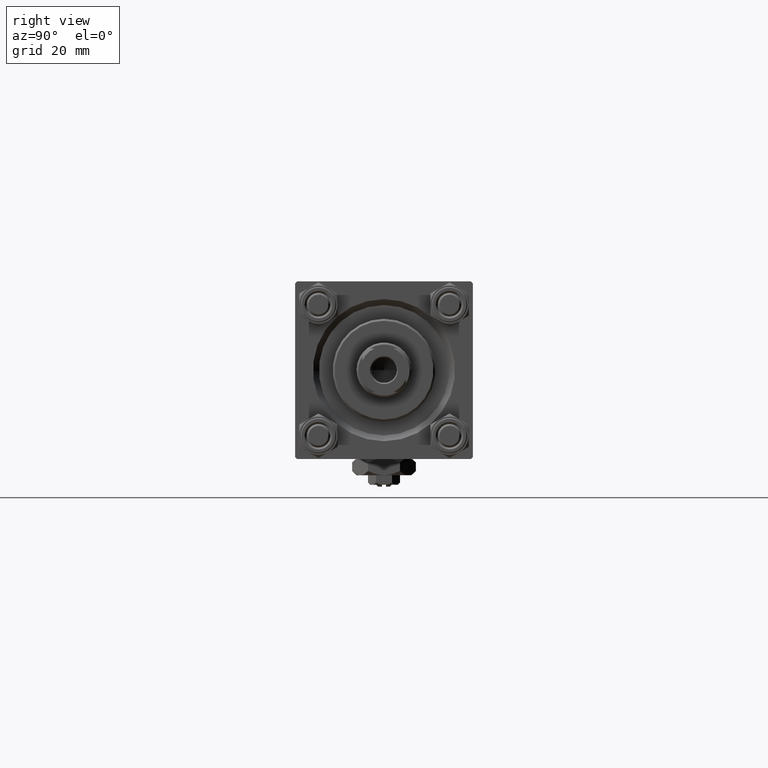
[diagram: clean part render]
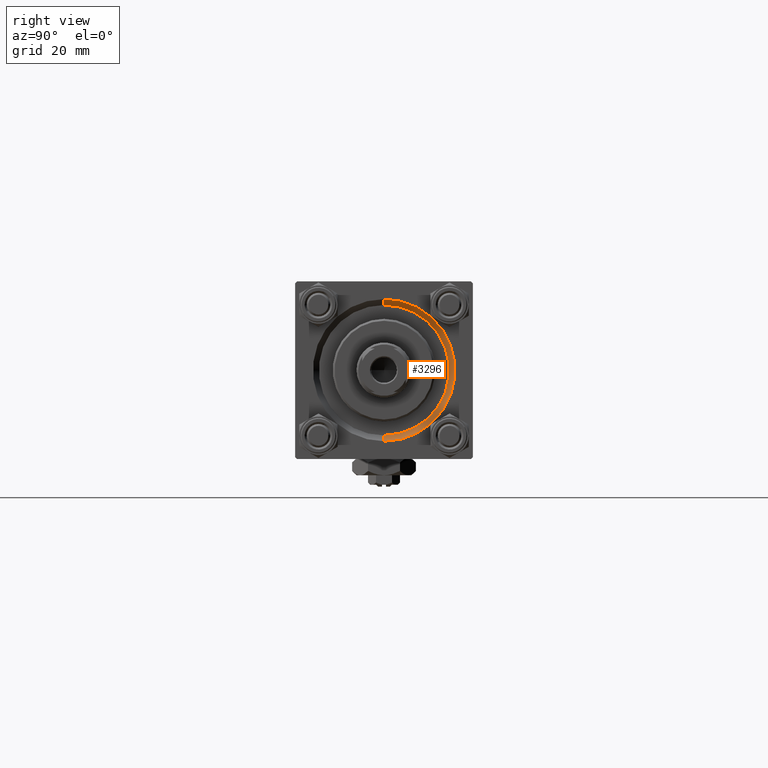
[diagram: same view with one face highlighted and labeled with its STEP entity id]
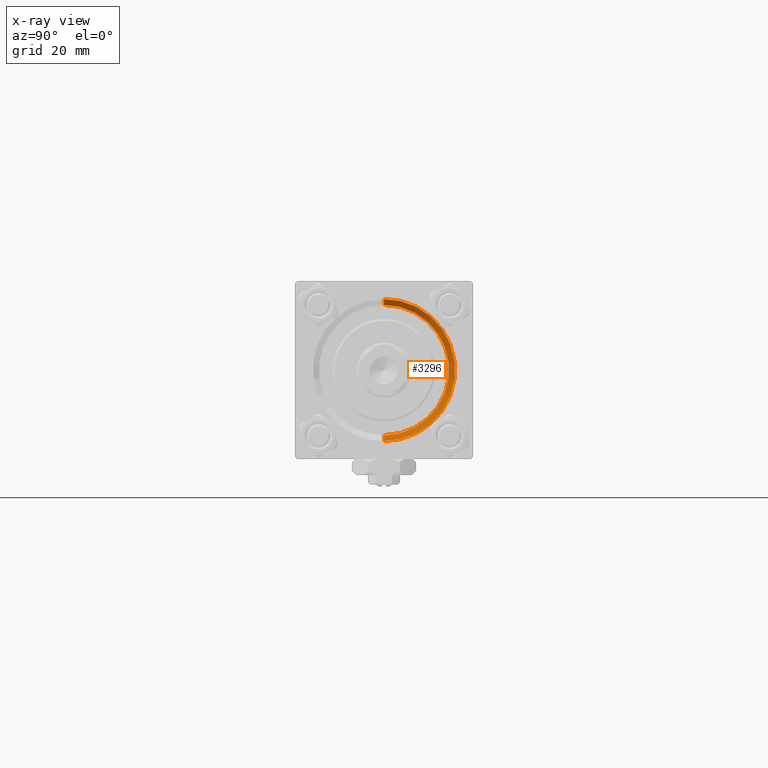
[diagram: x-ray of the same camera — body ghosted, the highlighted face saturated]
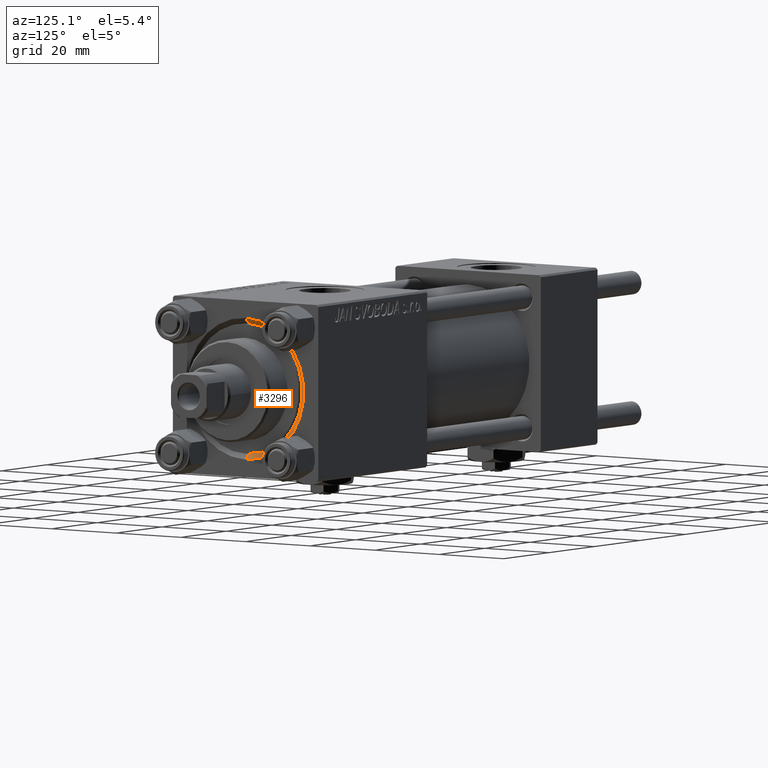
[diagram: same view with one face highlighted and labeled with its STEP entity id]
A machine part, right view. The second image highlights one B-rep face of the part: STEP entity #3296.
The next image is the same camera in x-ray: the body ghosted, the highlighted face saturated — about 0% of this face is hidden behind the body in this view.
A second angle (auxiliary view) of the same face is appended — the face is thin or edge-on in the first view.
In plain terms, the highlighted conical surface has half-angle 45 deg.
Its self-contained STEP definition (entity closure, byte-faithful):
#569 = DIRECTION ( 'NONE',  ( 0.7071067811865474617, 0.000000000000000000, -0.7071067811865474617 ) ) ;
#1632 = EDGE_CURVE ( 'NONE', #51330, #27366, #30448, .T. ) ;
#2105 = CARTESIAN_POINT ( 'NONE',  ( 121.5000000000000142, 2.020667218593133100E-15, 16.50000000000000000 ) ) ;
#2649 = DIRECTION ( 'NONE',  ( 0.7071067811865474617, 8.659560562354932858E-17, 0.7071067811865474617 ) ) ;
#3296 = ADVANCED_FACE ( 'NONE', ( #35816 ), #15630, .F. ) ;
#3797 = DIRECTION ( 'NONE',  ( 0.000000000000000000, 0.000000000000000000, -1.000000000000000000 ) ) ;
#4384 = EDGE_CURVE ( 'NONE', #26597, #7895, #40447, .T. ) ;
#4731 = CIRCLE ( 'NONE', #49176, 16.50000000000000000 ) ;
#7895 = VERTEX_POINT ( 'NONE', #47192 ) ;
#7985 = DIRECTION ( 'NONE',  ( 1.000000000000000000, 0.000000000000000000, 0.000000000000000000 ) ) ;
#8852 = DIRECTION ( 'NONE',  ( 1.000000000000000000, 0.000000000000000000, 0.000000000000000000 ) ) ;
#12270 = AXIS2_PLACEMENT_3D ( 'NONE', #39750, #7985, #3797 ) ;
#12541 = CARTESIAN_POINT ( 'NONE',  ( 121.5000000000000142, 0.000000000000000000, 0.000000000000000000 ) ) ;
#13405 = ORIENTED_EDGE ( 'NONE', *, *, #4384, .T. ) ;
#14212 = EDGE_CURVE ( 'NONE', #26597, #51330, #4731, .T. ) ;
#15630 = CONICAL_SURFACE ( 'NONE', #12270, 16.50000000000000000, 0.7853981633974482790 ) ;
#15666 = ORIENTED_EDGE ( 'NONE', *, *, #1632, .F. ) ;
#19701 = DIRECTION ( 'NONE',  ( -1.000000000000000000, 0.000000000000000000, -0.000000000000000000 ) ) ;
#19958 = DIRECTION ( 'NONE',  ( 0.000000000000000000, 0.000000000000000000, 1.000000000000000000 ) ) ;
#21481 = VECTOR ( 'NONE', #2649, 1000.000000000000114 ) ;
#22097 = EDGE_LOOP ( 'NONE', ( #15666, #41887, #13405, #47477 ) ) ;
#24264 = CARTESIAN_POINT ( 'NONE',  ( 121.5000000000000142, 0.000000000000000000, -16.50000000000000000 ) ) ;
#26597 = VERTEX_POINT ( 'NONE', #24264 ) ;
#27366 = VERTEX_POINT ( 'NONE', #41436 ) ;
#29523 = CIRCLE ( 'NONE', #36220, 18.00000000000000355 ) ;
#30448 = LINE ( 'NONE', #46456, #21481 ) ;
#31515 = CARTESIAN_POINT ( 'NONE',  ( 123.0000000000000142, 0.000000000000000000, 0.000000000000000000 ) ) ;
#32794 = EDGE_CURVE ( 'NONE', #27366, #7895, #29523, .T. ) ;
#35816 = FACE_OUTER_BOUND ( 'NONE', #22097, .T. ) ;
#36220 = AXIS2_PLACEMENT_3D ( 'NONE', #31515, #19701, #19958 ) ;
#39750 = CARTESIAN_POINT ( 'NONE',  ( 121.5000000000000142, 0.000000000000000000, 0.000000000000000000 ) ) ;
#40447 = LINE ( 'NONE', #48837, #48515 ) ;
#40886 = DIRECTION ( 'NONE',  ( 0.000000000000000000, 0.000000000000000000, 1.000000000000000000 ) ) ;
#41436 = CARTESIAN_POINT ( 'NONE',  ( 123.0000000000000142, 2.204364238465235822E-15, 18.00000000000000355 ) ) ;
#41887 = ORIENTED_EDGE ( 'NONE', *, *, #14212, .F. ) ;
#46456 = CARTESIAN_POINT ( 'NONE',  ( 121.5000000000000142, 2.020667218593133100E-15, 16.50000000000000000 ) ) ;
#47192 = CARTESIAN_POINT ( 'NONE',  ( 123.0000000000000142, 0.000000000000000000, -18.00000000000000355 ) ) ;
#47477 = ORIENTED_EDGE ( 'NONE', *, *, #32794, .F. ) ;
#48515 = VECTOR ( 'NONE', #569, 1000.000000000000114 ) ;
#48837 = CARTESIAN_POINT ( 'NONE',  ( 121.5000000000000142, 0.000000000000000000, -16.50000000000000000 ) ) ;
#49176 = AXIS2_PLACEMENT_3D ( 'NONE', #12541, #8852, #40886 ) ;
#51330 = VERTEX_POINT ( 'NONE', #2105 ) ;